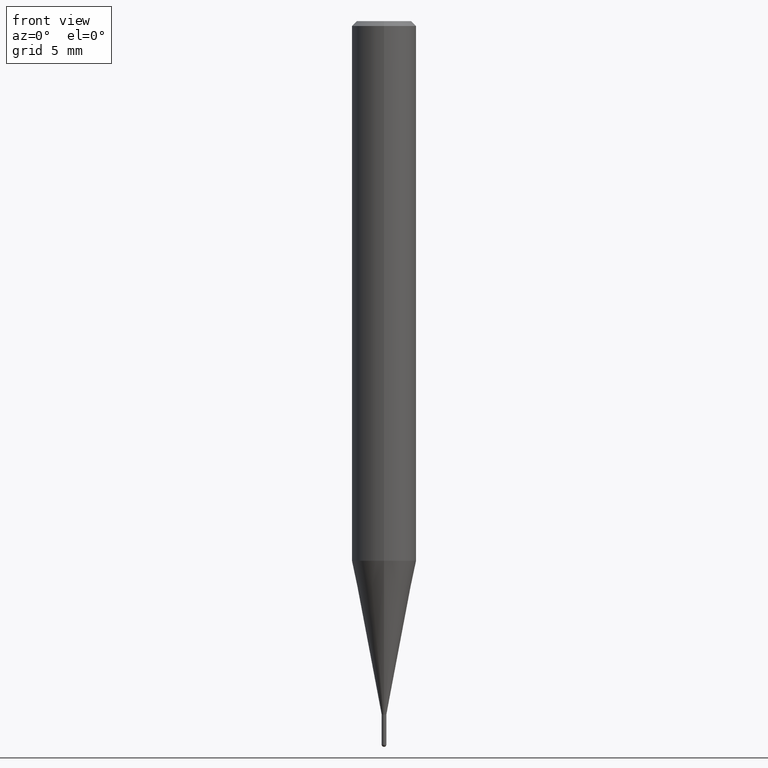
[diagram: clean part render]
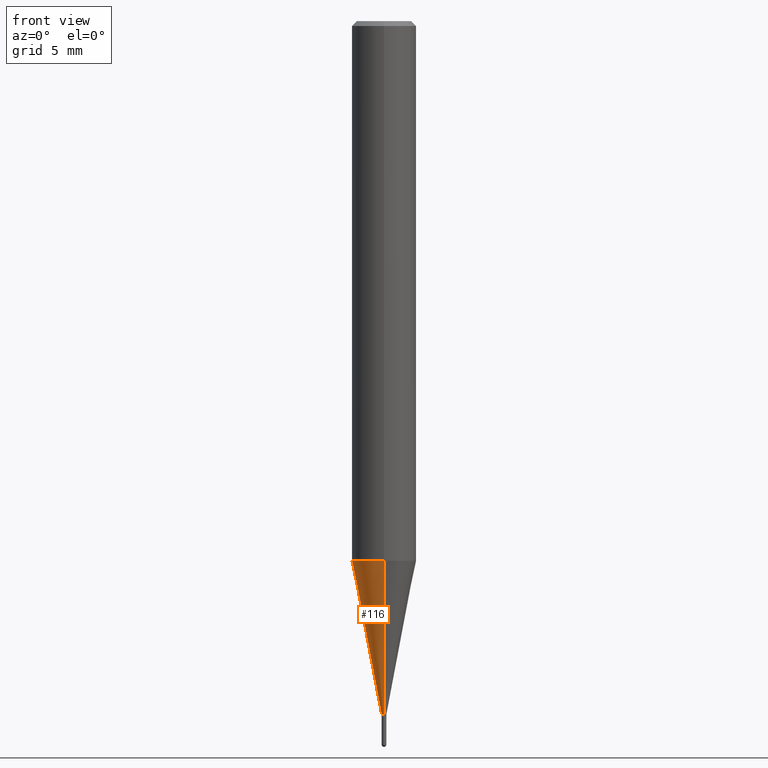
[diagram: same view with one face highlighted and labeled with its STEP entity id]
A machine part, front view. The second image highlights one B-rep face of the part: STEP entity #116.
In plain terms, the highlighted conical surface has half-angle 11 deg.
Its self-contained STEP definition (entity closure, byte-faithful):
#116=ADVANCED_FACE('',(#261),#262,.T.);
#120=VERTEX_POINT('',#266);
#122=VERTEX_POINT('',#268);
#126=EDGE_CURVE('',#162,#210,#272,.T.);
#146=EDGE_CURVE('',#162,#120,#294,.T.);
#148=EDGE_CURVE('',#120,#122,#296,.T.);
#162=VERTEX_POINT('',#315);
#208=EDGE_CURVE('',#122,#210,#366,.T.);
#210=VERTEX_POINT('',#368);
#261=FACE_OUTER_BOUND('',#416,.T.);
#262=CONICAL_SURFACE('',#417,1.07245,0.19198911666217);
#266=CARTESIAN_POINT('',(2.44915147732706E-016,-1.99995,-33.457));
#268=CARTESIAN_POINT('',(0.0,1.99995,-33.457));
#272=CIRCLE('',#432,0.14495);
#294=LINE('',#457,#458);
#296=CIRCLE('',#461,1.99995);
#315=CARTESIAN_POINT('',(1.77506690986554E-017,-0.14495,-43.0));
#366=LINE('',#548,#549);
#368=CARTESIAN_POINT('',(0.0,0.14495,-43.0));
#416=EDGE_LOOP('',(#605,#606,#607,#608));
#417=AXIS2_PLACEMENT_3D('',#609,#610,#611);
#432=AXIS2_PLACEMENT_3D('',#614,#615,#616);
#457=CARTESIAN_POINT('',(1.31332908415681E-016,-1.07245,-38.2285));
#458=VECTOR('',#642,1.0);
#461=AXIS2_PLACEMENT_3D('',#643,#644,#645);
#548=CARTESIAN_POINT('',(-1.31332908415681E-016,1.07245,-38.2285));
#549=VECTOR('',#733,1.0);
#605=ORIENTED_EDGE('',*,*,#208,.T.);
#606=ORIENTED_EDGE('',*,*,#126,.F.);
#607=ORIENTED_EDGE('',*,*,#146,.T.);
#608=ORIENTED_EDGE('',*,*,#148,.T.);
#609=CARTESIAN_POINT('',(0.0,0.0,-38.2285));
#610=DIRECTION('',(-0.0,-0.0,1.0));
#611=DIRECTION('',(0.0,1.0,0.0));
#614=CARTESIAN_POINT('',(0.0,0.0,-43.0));
#615=DIRECTION('',(0.0,0.0,-1.0));
#616=DIRECTION('',(0.0,1.0,0.0));
#642=DIRECTION('',(2.33669392942694E-017,-0.190811841056793,0.981626630299177));
#643=CARTESIAN_POINT('',(0.0,0.0,-33.457));
#644=DIRECTION('',(0.0,0.0,-1.0));
#645=DIRECTION('',(0.0,1.0,0.0));
#733=DIRECTION('',(2.33669392942694E-017,-0.190811841056793,-0.981626630299177));